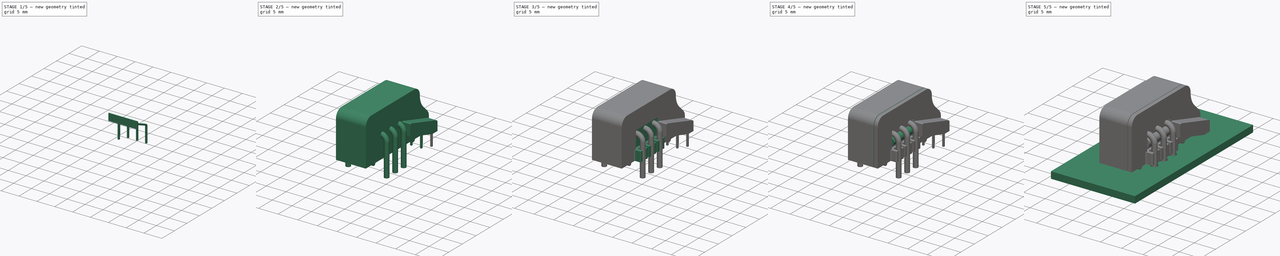
[diagram: build sequence overview — one tinted view per stage of 5, left to right]
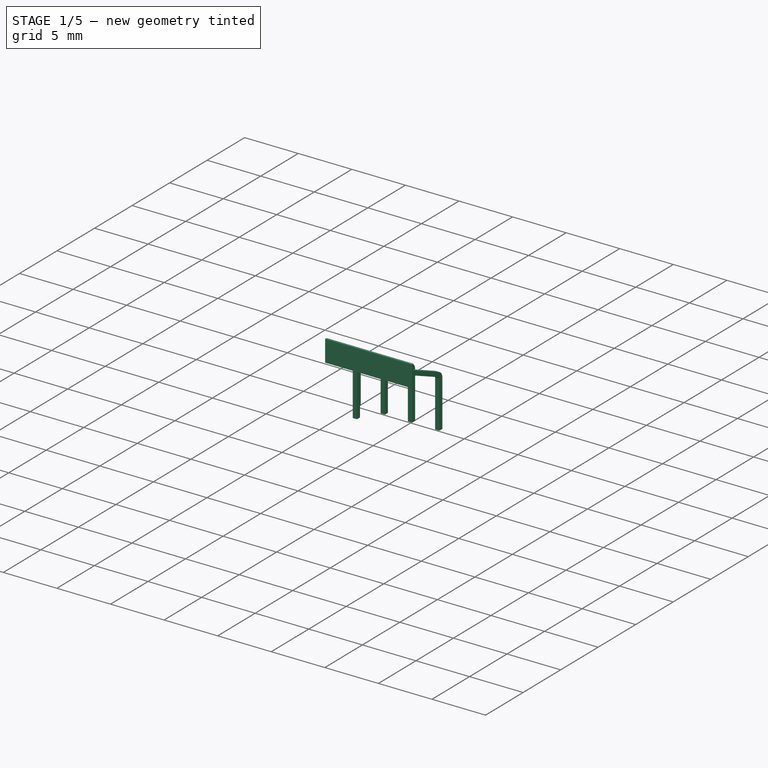
[diagram: stage 1 of 5 — iso view after this stage's code; geometry added in this stage tinted green]
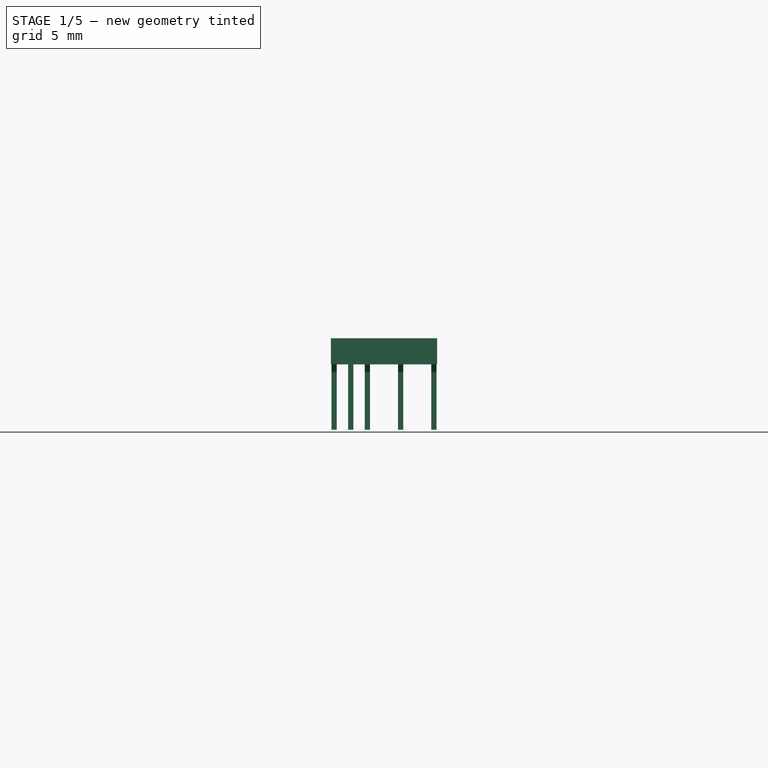
[diagram: stage 1 of 5 — front view after this stage's code; geometry added in this stage tinted green]
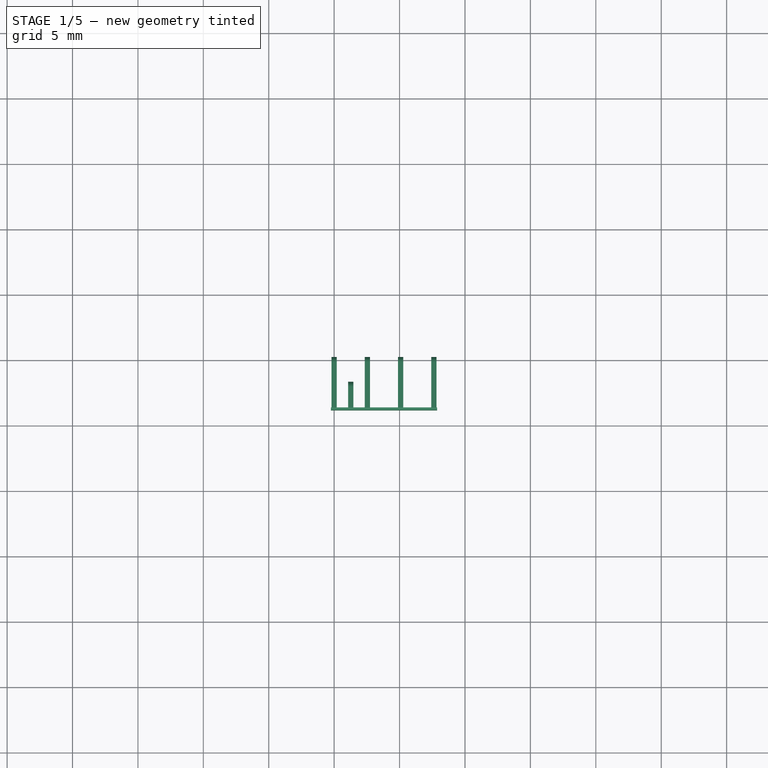
[diagram: stage 1 of 5 — top view after this stage's code; geometry added in this stage tinted green]
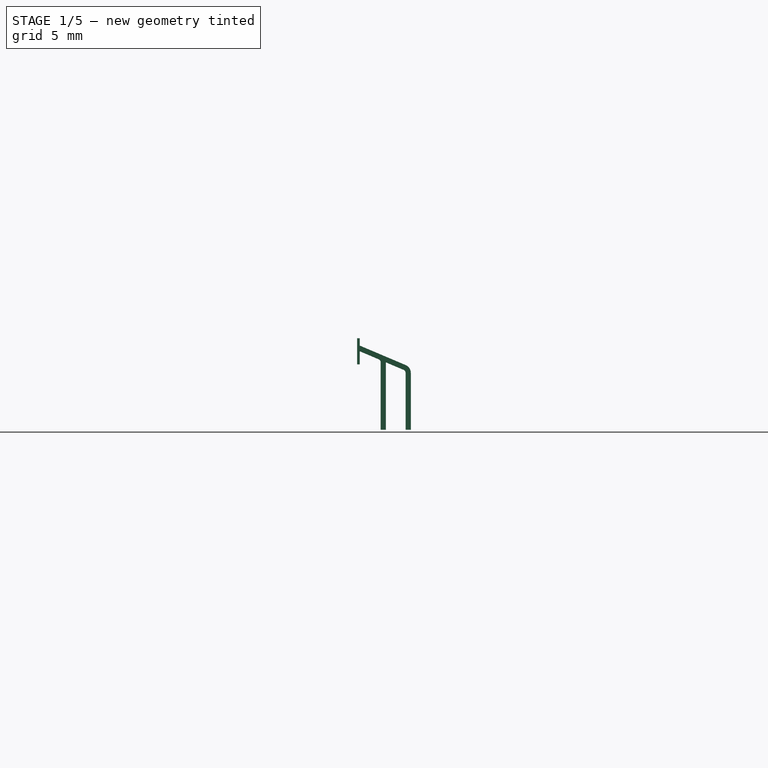
[diagram: stage 1 of 5 — right view after this stage's code; geometry added in this stage tinted green]
FCSTD DOCUMENT  (FreeCAD 0.17R10432 (Git))
Label: LEM_HO-NP
License: All rights reserved
LicenseURL: http://en.wikipedia.org/wiki/All_rights_reserved
objects: Sketcher::SketchObject×12, PartDesign::Plane×8, PartDesign::Pad×7, Part::FeaturePython×6, PartDesign::Mirrored×3, PartDesign::Pocket×3, PartDesign::Body×3, PartDesign::LinearPattern×2, App::DocumentObjectGroup×1, Part::Sweep×1, App::Part×1, Part::MultiFuse×1
note: 56 computed .brp shape members not serialized (recipe doc carries the construction recipe); baked Part::Feature solids carry a one-line shape summary decoded from their .brp

FEATURE [PartDesign::Plane] DatumPlane006  label="X_mid002"
  MapMode = 5
  Placement = pos=(3.81,0,0) rot=(0.57735,0.57735,0.57735;2.0944rad)
  Support = -> [YZ_Plane003]
  superPlacement = pos=(0,0,3.81) rot=(0,0,1;0rad)
  expr: superPlacement.Base.z = 3 * 1.27
FEATURE [Sketcher::SketchObject] Sketch009
  MapMode = 5
  Placement = pos=(3.81,0,0) rot=(0.57735,0.57735,0.57735;2.0944rad)
  Support = -> [DatumPlane006]
  sketch-geometry (4):
    g0: LineSegment StartX=-3.9 StartY=3.5 StartZ=0 EndX=-3.7 EndY=3.5 EndZ=0
    g1: LineSegment StartX=-3.7 StartY=3.5 StartZ=0 EndX=-3.7 EndY=1.5 EndZ=0
    g2: LineSegment StartX=-3.7 StartY=1.5 StartZ=0 EndX=-3.9 EndY=1.5 EndZ=0
    g3: LineSegment StartX=-3.9 StartY=1.5 StartZ=0 EndX=-3.9 EndY=3.5 EndZ=0
  constraints (12):
    c: Coincident(g0,g1)
    c: Coincident(g1,g2)
    c: Coincident(g2,g3)
    c: Coincident(g3,g0)
    c: Horizontal(g0)
    c: Horizontal(g2)
    c: Vertical(g1)
    c: Vertical(g3)
    c: DistanceX(g1,g-1) = 3.7
    c: DistanceX(g0,g0) = 0.2
    c: DistanceY(g1,g1) = 2
    c: DistanceY(g-1,g1) = 1.5
FEATURE [PartDesign::Pad] Pad004  label="PinBackplate"
  Length = 8.12
  Length2 = 100
  Midplane = true
  Placement = pos=(3.81,0,0) rot=(0.57735,0.57735,0.57735;2.0944rad)
  Profile = -> Sketch009
  Type = 0
  expr: Length = 6 * 1.27 + 2 * 0.25
FEATURE [Sketcher::SketchObject] Sketch010
  ExternalGeometry = -> [Pad004]
  MapMode = 5
  Placement = pos=(0,0,0) rot=(0.57735,0.57735,0.57735;2.0944rad)
  Support = -> [YZ_Plane003]
  sketch-geometry (8):
    g0: LineSegment StartX=-0.2 StartY=-3.5 StartZ=0 EndX=-0.2 EndY=0.85 EndZ=0
    g1: LineSegment StartX=-0.352383 StartY=1.08015 StartZ=0 EndX=-3.7 EndY=2.5 EndZ=0
    g2: LineSegment StartX=-3.7 StartY=2.5 StartZ=0 EndX=-3.7 EndY=2.93449 EndZ=0
    g3: LineSegment StartX=-3.7 StartY=2.93449 StartZ=0 EndX=-0.196196 EndY=1.4484 EndZ=0
    g4: LineSegment StartX=0.2 StartY=0.85 StartZ=0 EndX=0.2 EndY=-3.5 EndZ=0
    g5: LineSegment StartX=0.2 StartY=-3.5 StartZ=0 EndX=-0.2 EndY=-3.5 EndZ=0
    g6: ArcOfCircle CenterX=-0.45 CenterY=0.85 CenterZ=0 NormalX=0 NormalY=0 NormalZ=1 Radius=0.25 StartAngle=0 EndAngle=1.16966
    g7: ArcOfCircle CenterX=-0.45 CenterY=0.85 CenterZ=0 NormalX=0 NormalY=0 NormalZ=1 Radius=0.65 StartAngle=0 EndAngle=1.16966
  constraints (21):
    c: Vertical(g0)
    c: Coincident(g1,g2)
    c: Vertical(g2)
    c: Coincident(g2,g3)
    c: Vertical(g4)
    c: Coincident(g4,g5)
    c: Coincident(g5,g0)
    c: Horizontal(g5)
    c: Tangent(g1,g6) = -1.5708
    c: Tangent(g0,g6) = -1.5708
    c: Tangent(g3,g7) = 1.5708
    c: Tangent(g4,g7) = 1.5708
    c: Coincident(g7,g6)
    c: Parallel(g1,g3)
    c: Radius(g6) = 0.25
    c: DistanceX(g5,g5) = 0.4
    c: Symmetric(g0,g4,g-2)
    c: DistanceY(g4,g-1) = 3.5
    c: DistanceY(g0,g6) = 4.35
    c: DistanceY(g-1,g1) = 2.5
    c: PointOnObject(g1,g-3)
FEATURE [PartDesign::Pad] Pad005  label="SignalPin1"
  BaseFeature = -> Pad004
  Length = 0.4
  Length2 = 100
  Midplane = true
  Placement = pos=(3.81,0,0) rot=(0.57735,0.57735,0.57735;2.0944rad)
  Profile = -> Sketch010
  Type = 0
FEATURE [PartDesign::LinearPattern] LinearPattern  label="OddSignalPins"
  BaseFeature = -> Pad005
  Direction = -> X_Axis003
  Length = 7.62
  Occurrences = 4
  Originals = -> [Pad005]
  Placement = pos=(3.81,0,0) rot=(0.57735,0.57735,0.57735;2.0944rad)
  expr: Length = 6 * 1.27
FEATURE [PartDesign::Plane] DatumPlane007  label="Pin2_x"
  MapMode = 5
  Placement = pos=(1.27,0,0) rot=(0.57735,0.57735,0.57735;2.0944rad)
  Support = -> [YZ_Plane003]
  superPlacement = pos=(0,0,1.27) rot=(0,0,1;0rad)
FEATURE [Sketcher::SketchObject] Sketch011
  ExternalGeometry = -> [LinearPattern]
  MapMode = 5
  Placement = pos=(1.27,0,0) rot=(0.57735,0.57735,0.57735;2.0944rad)
  Support = -> [DatumPlane007]
  sketch-geometry (9):
    g0: LineSegment StartX=-3.7 StartY=2.93449 StartZ=0 EndX=-3.7 EndY=2.5 EndZ=0
    g1: LineSegment StartX=-3.7 StartY=2.5 StartZ=0 EndX=-2.25738 EndY=1.88813 EndZ=0
    g2: LineSegment StartX=-2.105 StartY=1.65798 StartZ=0 EndX=-2.105 EndY=-3.5 EndZ=0
    g3: LineSegment StartX=-2.105 StartY=-3.5 StartZ=0 EndX=-1.705 EndY=-3.5 EndZ=0
    g4: LineSegment StartX=-1.705 StartY=-3.5 StartZ=0 EndX=-1.705 EndY=1.65798 EndZ=0
    g5: LineSegment StartX=-2.1012 StartY=2.25638 StartZ=0 EndX=-3.7 EndY=2.93449 EndZ=0
    g6: ArcOfCircle CenterX=-2.355 CenterY=1.65798 CenterZ=0 NormalX=0 NormalY=0 NormalZ=1 Radius=0.65 StartAngle=0 EndAngle=1.16966
    g7: ArcOfCircle CenterX=-2.355 CenterY=1.65798 CenterZ=0 NormalX=0 NormalY=0 NormalZ=1 Radius=0.25 StartAngle=0 EndAngle=1.16966
    g8: LineSegment [constr] StartX=-1.905 StartY=-3.5 StartZ=0 EndX=-1.905 EndY=0 EndZ=0
  constraints (24):
    c: Vertical(g0)
    c: Coincident(g0,g1)
    c: Vertical(g2)
    c: Coincident(g2,g3)
    c: Coincident(g3,g4)
    c: Vertical(g4)
    c: Coincident(g5,g0)
    c: Tangent(g5,g6) = -1.5708
    c: Tangent(g4,g6) = -1.5708
    c: Tangent(g1,g7) = 1.5708
    c: Tangent(g2,g7) = 1.5708
    c: Coincident(g6,g7)
    c: Parallel(g5,g1)
    c: Radius(g7) = 0.25
    c: Horizontal(g3)
    c: DistanceX(g3,g3) = 0.4
    c: PointOnObject(g8,g-1)
    c: Vertical(g8)
    c: Symmetric(g2,g3,g8)
    c: DistanceX(g8,g-1) = 1.905
    c: Coincident(g0,g-4)
    c: PointOnObject(g1,g-4)
    c: PointOnObject(g8,g3)
    c: DistanceY(g3,g-1) = 3.5
FEATURE [PartDesign::Pad] Pad006  label="SignalPin2"
  BaseFeature = -> LinearPattern
  Length = 0.4
  Length2 = 100
  Midplane = true
  Placement = pos=(3.81,0,0) rot=(0.57735,0.57735,0.57735;2.0944rad)
  Profile = -> Sketch011
  Type = 0
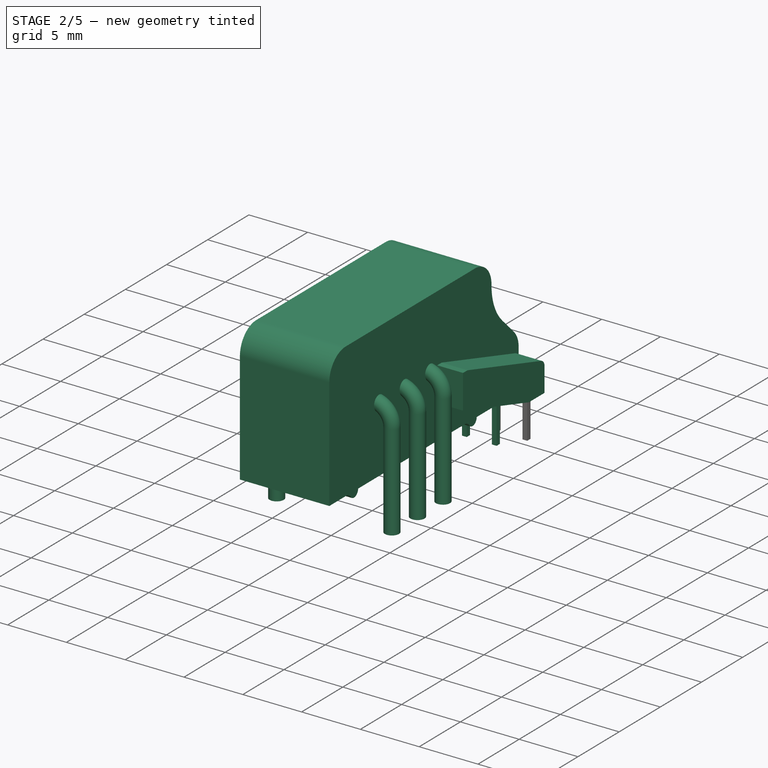
[diagram: stage 2 of 5 — iso view after this stage's code; geometry added in this stage tinted green]
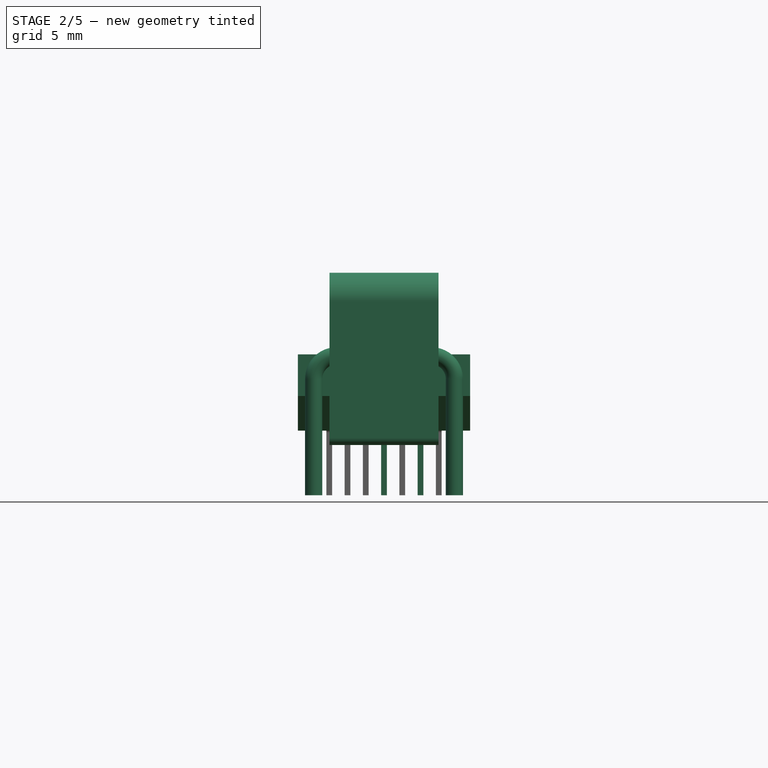
[diagram: stage 2 of 5 — front view after this stage's code; geometry added in this stage tinted green]
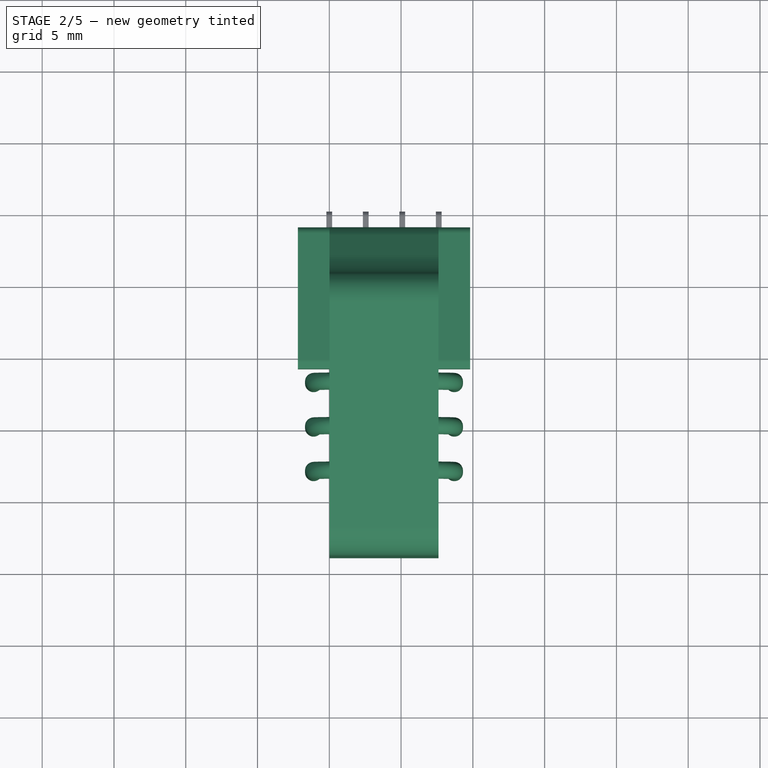
[diagram: stage 2 of 5 — top view after this stage's code; geometry added in this stage tinted green]
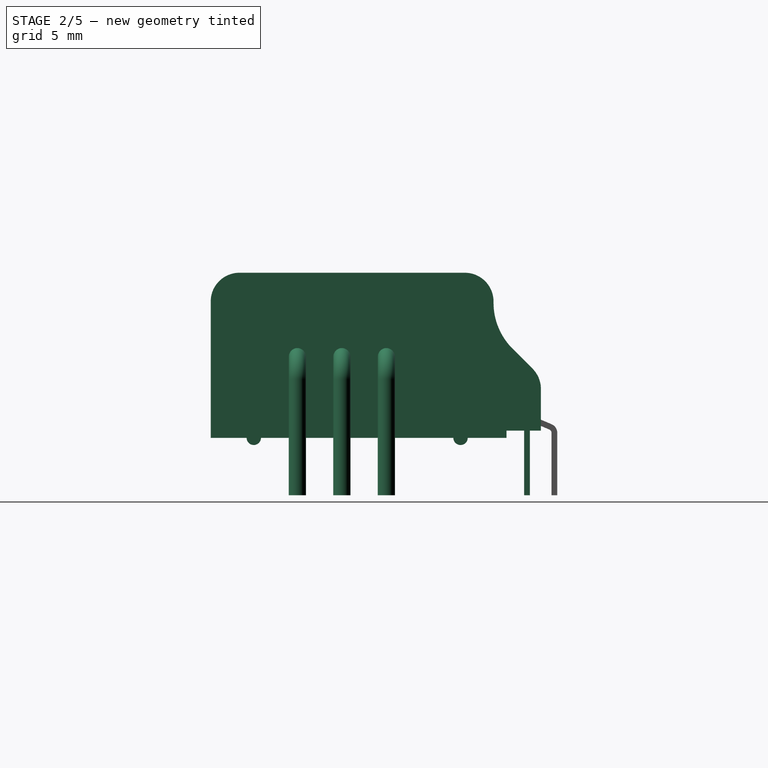
[diagram: stage 2 of 5 — right view after this stage's code; geometry added in this stage tinted green]
FEATURE [App::DocumentObjectGroup] LEM_HO_NP_fp
  Group = -> [Filk_lines,TopPads,BotPads,THPs,newPCB]
FEATURE [PartDesign::Plane] DatumPlane  label="X_mid"
  MapMode = 5
  Placement = pos=(3.81,0,0) rot=(0.57735,-0.57735,-0.57735;2.0944rad)
  Support = -> [YZ_Plane001]
  superPlacement = pos=(0,0,-3.81) rot=(0,0,1;0rad)
  expr: superPlacement.Base.z = -3 * 1.27
FEATURE [Sketcher::SketchObject] Sketch  label="MainBodyOutline"
  MapMode = 5
  Placement = pos=(3.81,0,0) rot=(0.57735,-0.57735,-0.57735;2.0944rad)
  Support = -> [DatumPlane]
  sketch-geometry (22):
    g0: LineSegment [constr] StartX=0.94 StartY=0 StartZ=0 EndX=23.94 EndY=0 EndZ=0
    g1: LineSegment [constr] StartX=23.94 StartY=0 StartZ=0 EndX=23.94 EndY=12 EndZ=0
    g2: LineSegment [constr] StartX=23.94 StartY=12 StartZ=0 EndX=0.94 EndY=12 EndZ=0
    g3: LineSegment [constr] StartX=0.94 StartY=12 StartZ=0 EndX=0.94 EndY=0 EndZ=0
    g4: LineSegment [constr] StartX=0.94 StartY=0.5 StartZ=0 EndX=23.94 EndY=0.5 EndZ=0
    g5: ArcOfCircle CenterX=6.54 CenterY=0.5 CenterZ=0 NormalX=0 NormalY=0 NormalZ=1 Radius=0.5 StartAngle=3.14159 EndAngle=6.28319
    g6: ArcOfCircle CenterX=20.94 CenterY=0.5 CenterZ=0 NormalX=0 NormalY=0 NormalZ=1 Radius=0.5 StartAngle=3.14159 EndAngle=6.28319
    g7: ArcOfCircle CenterX=21.94 CenterY=10 CenterZ=0 NormalX=0 NormalY=0 NormalZ=1 Radius=2 StartAngle=0 EndAngle=1.5708
    g8: ArcOfCircle CenterX=6.24 CenterY=10 CenterZ=0 NormalX=0 NormalY=0 NormalZ=1 Radius=2 StartAngle=1.5708 EndAngle=3.14159
    g9: ArcOfCircle CenterX=-0.259999 CenterY=9.9 CenterZ=0 NormalX=0 NormalY=0 NormalZ=1 Radius=4.5 StartAngle=5.49779 EndAngle=6.28319
    g10: ArcOfCircle CenterX=2.94 CenterY=3.90761 CenterZ=0 NormalX=0 NormalY=0 NormalZ=1 Radius=2 StartAngle=2.35619 EndAngle=3.14159
    g11: LineSegment StartX=23.94 StartY=10 StartZ=0 EndX=23.94 EndY=0.5 EndZ=0
    g12: LineSegment StartX=23.94 StartY=0.5 StartZ=0 EndX=21.44 EndY=0.5 EndZ=0
    g13: LineSegment StartX=21.94 StartY=12 StartZ=0 EndX=6.24 EndY=12 EndZ=0
    g14: LineSegment StartX=4.24 StartY=10 StartZ=0 EndX=4.24 EndY=9.9 EndZ=0
    g15: LineSegment StartX=2.92198 StartY=6.71802 StartZ=0 EndX=1.52579 EndY=5.32182 EndZ=0
    g16: LineSegment [constr] StartX=2.92198 StartY=6.71802 StartZ=0 EndX=23.94 EndY=6.71802 EndZ=0
    g17: LineSegment StartX=0.94 StartY=3.90761 StartZ=0 EndX=0.94 EndY=1 EndZ=0
    g18: LineSegment StartX=0.94 StartY=1 StartZ=0 EndX=3.34 EndY=1 EndZ=0
    g19: LineSegment StartX=3.34 StartY=1 StartZ=0 EndX=3.34 EndY=0.5 EndZ=0
    g20: LineSegment StartX=3.34 StartY=0.5 StartZ=0 EndX=6.04 EndY=0.5 EndZ=0
    g21: LineSegment StartX=20.44 StartY=0.5 StartZ=0 EndX=7.04 EndY=0.5 EndZ=0
  constraints (70):
    c: Coincident(g0,g1)
    c: Coincident(g1,g2)
    c: Coincident(g2,g3)
    c: Coincident(g3,g0)
    c: Horizontal(g0)
    c: Horizontal(g2)
    c: Vertical(g1)
    c: Vertical(g3)
    c: PointOnObject(g0,g-1)
    c: DistanceX(g2,g2) = 23
    c: DistanceX(g-1,g1) = 23.94
    c: DistanceY(g1,g1) = 12
    c: PointOnObject(g4,g3)
    c: PointOnObject(g4,g1)
    c: Horizontal(g4)
    c: DistanceY(g0,g4) = 0.5
    c: PointOnObject(g5,g4)
    c: PointOnObject(g5,g4)
    c: PointOnObject(g5,g4)
    c: PointOnObject(g6,g4)
    c: PointOnObject(g6,g4)
    c: PointOnObject(g6,g4)
    c: Radius(g6) = 0.5
    c: Equal(g6,g5)
    c: DistanceX(g5,g6) = 14.4
    c: DistanceX(g6,g0) = 3
    c: Radius(g8) = 2
    c: Radius(g9) = 4.5
    c: Radius(g10) = 2
    c: Radius(g7) = 2
    c: Tangent(g7,g11) = 1.5708
    c: Coincident(g11,g12)
    c: Coincident(g12,g6)
    c: Coincident(g11,g4)
    c: Vertical(g11)
    c: Coincident(g13,g8)
    c: Tangent(g13,g8)
    c: Tangent(g13,g7)
    c: Horizontal(g13)
    c: PointOnObject(g7,g2)
    c: Vertical(g14)
    c: Coincident(g14,g8)
    c: Coincident(g14,g9)
    c: Tangent(g9,g14)
    c: Tangent(g14,g8)
    c: DistanceY(g14,g14) = 0.1
    c: Coincident(g7,g13)
    c: Coincident(g15,g9)
    c: Coincident(g15,g10)
    c: Tangent(g15,g9)
    c: Tangent(g15,g10)
    c: Coincident(g16,g9)
    c: PointOnObject(g16,g1)
    c: Horizontal(g16)
    c: Angle(g15,g16) = 2.35619
    c: DistanceX(g8,g7) = 15.7
    c: Tangent(g10,g17) = -1.5708
    c: Coincident(g17,g18)
    c: Horizontal(g18)
    c: Coincident(g18,g19)
    c: PointOnObject(g19,g4)
    c: Coincident(g19,g20)
    c: Coincident(g20,g5)
    c: Vertical(g17)
    c: PointOnObject(g17,g3)
    c: Vertical(g19)
    c: DistanceX(g18,g18) = 2.4
    c: DistanceY(g19,g19) = 0.5
    c: Coincident(g21,g6)
    c: Coincident(g21,g5)
FEATURE [PartDesign::Pad] Pad
  Length = 7.6
  Length2 = 100
  Midplane = true
  Placement = pos=(3.81,0,0) rot=(0.57735,-0.57735,-0.57735;2.0944rad)
  Profile = -> Sketch
  Reversed = true
  Type = 0
FEATURE [PartDesign::Plane] DatumPlane001  label="X_min"
  MapMode = 5
  Placement = pos=(-2.19,0,0) rot=(0.57735,-0.57735,-0.57735;2.0944rad)
  Support = -> [DatumPlane]
  superPlacement = pos=(0,0,6) rot=(0,0,1;0rad)
FEATURE [Sketcher::SketchObject] Sketch001
  ExternalGeometry = -> [Pad]
  MapMode = 5
  Placement = pos=(3.81,0,0) rot=(0.57735,-0.57735,-0.57735;2.0944rad)
  Support = -> [DatumPlane]
  sketch-geometry (8):
    g0: LineSegment StartX=0.94 StartY=1 StartZ=0 EndX=2.84 EndY=1 EndZ=0
    g1: LineSegment StartX=2.84 StartY=1 StartZ=0 EndX=10.84 EndY=3.41 EndZ=0
    g2: LineSegment StartX=10.84 StartY=3.41 StartZ=0 EndX=10.84 EndY=6.31 EndZ=0
    g3: LineSegment StartX=10.84 StartY=6.31 StartZ=0 EndX=10.3848 EndY=6.31 EndZ=0
    g4: LineSegment StartX=10.2117 StartY=6.2845 StartZ=0 EndX=1.36693 EndY=3.62 EndZ=0
    g5: LineSegment StartX=0.94 StartY=3.0455 StartZ=0 EndX=0.94 EndY=1 EndZ=0
    g6: ArcOfCircle CenterX=1.54 CenterY=3.0455 CenterZ=0 NormalX=0 NormalY=0 NormalZ=1 Radius=0.6 StartAngle=1.8634 EndAngle=3.14159
    g7: ArcOfCircle CenterX=10.3848 CenterY=5.71 CenterZ=0 NormalX=0 NormalY=0 NormalZ=1 Radius=0.6 StartAngle=1.5708 EndAngle=1.8634
  constraints (21):
    c: Coincident(g-3,g0)
    c: Horizontal(g0)
    c: Coincident(g0,g1)
    c: Coincident(g1,g2)
    c: Vertical(g2)
    c: Coincident(g2,g3)
    c: Horizontal(g3)
    c: Coincident(g5,g0)
    c: Tangent(g4,g6) = -1.5708
    c: Tangent(g5,g6) = -1.5708
    c: Tangent(g4,g7) = -1.5708
    c: Tangent(g3,g7) = -1.5708
    c: Radius(g6) = 0.6
    c: Equal(g6,g7)
    c: PointOnObject(g5,g-3)
    c: DistanceY(g0,g4) = 2.62
    c: Parallel(g4,g1)
    c: DistanceY(g-1,g1) = 3.41
    c: DistanceY(g2,g2) = 2.9
    c: DistanceX(g0,g0) = 1.9
    c: DistanceX(g-3,g2) = 9.9
FEATURE [PartDesign::Pad] Pad001
  BaseFeature = -> Pad
  Length = 12
  Length2 = 100
  Midplane = true
  Placement = pos=(3.81,0,0) rot=(0.57735,-0.57735,-0.57735;2.0944rad)
  Profile = -> Sketch001
  Type = 0
FEATURE [PartDesign::Body] Body  label="MainBody"
  Group = -> [DatumPlane,Sketch,Pad,DatumPlane001,Sketch001,Pad001,Sketch002,Pad002,Mirrored,Sketch003,Pocket,Mirrored001,Sketch004,Pad003,Mirrored002,DatumPlane002,Sketch005,Pocket001,Sketch006,Pocket002]
  Origin = -> BodyOrigin
  Tip = -> Pocket002
FEATURE [PartDesign::Plane] DatumPlane003  label="X_mid001"
  MapMode = 5
  Placement = pos=(3.81,0,0) rot=(0.57735,0.57735,0.57735;2.0944rad)
  Support = -> [YZ_Plane002]
  superPlacement = pos=(0,0,3.81) rot=(0,0,1;0rad)
FEATURE [PartDesign::Plane] DatumPlane004  label="Y_pin_8"
  MapMode = 5
  Placement = pos=(0,-11.705,0) rot=(1,0,0;1.5708rad)
  Support = -> [XZ_Plane002]
  superPlacement = pos=(0,0,11.705) rot=(0,0,1;0rad)
  expr: superPlacement.Base.z = 9.8000000000000007 + 1.905
FEATURE [Sketcher::SketchObject] Sketch007
  MapMode = 5
  Placement = pos=(0,-11.705,0) rot=(1,0,0;1.5708rad)
  Support = -> [DatumPlane004]
  expr: Constraints[16] = 1 + 0.59999999999999998
  expr: Constraints[4] = 3 * 1.27
  sketch-geometry (7):
    g0: LineSegment [constr] StartX=-1.09 StartY=-3.5 StartZ=0 EndX=8.71 EndY=-3.5 EndZ=0
    g1: LineSegment [constr] StartX=3.81 StartY=-3.5 StartZ=0 EndX=3.81 EndY=6.21 EndZ=0
    g2: LineSegment StartX=-1.09 StartY=-3.5 StartZ=0 EndX=-1.09 EndY=4.61 EndZ=0
    g3: LineSegment StartX=0.51 StartY=6.21 StartZ=0 EndX=7.11 EndY=6.21 EndZ=0
    g4: LineSegment StartX=8.71 StartY=4.61 StartZ=0 EndX=8.71 EndY=-3.5 EndZ=0
    g5: ArcOfCircle CenterX=0.51 CenterY=4.61 CenterZ=0 NormalX=0 NormalY=0 NormalZ=1 Radius=1.6 StartAngle=1.5708 EndAngle=3.14159
    g6: ArcOfCircle CenterX=7.11 CenterY=4.61 CenterZ=0 NormalX=0 NormalY=0 NormalZ=1 Radius=1.6 StartAngle=0 EndAngle=1.5708
  constraints (20):
    c: Horizontal(g0)
    c: DistanceX(g0,g0) = 9.8
    c: Vertical(g1)
    c: Symmetric(g0,g0,g1)
    c: DistanceX(g-1,g1) = 3.81
    c: DistanceY(g0,g-1) = 3.5
    c: Coincident(g0,g2)
    c: Vertical(g2)
    c: Horizontal(g3)
    c: Vertical(g4)
    c: Coincident(g4,g0)
    c: Tangent(g3,g5) = 1.5708
    c: Tangent(g2,g5) = 1.5708
    c: Tangent(g3,g6) = 1.5708
    c: Tangent(g4,g6) = 1.5708
    c: DistanceY(g-1,g5) = 4.61
    c: Radius(g5) = 1.6
    c: Equal(g6,g5)
    c: PointOnObject(g1,g3)
    c: PointOnObject(g1,g0)
FEATURE [PartDesign::Plane] DatumPlane005  label="Pins_Bottom"
  MapMode = 5
  Placement = pos=(0,0,-3.5) rot=(0,0,1;0rad)
  Support = -> [XY_Plane002]
  superPlacement = pos=(0,0,-3.5) rot=(0,0,1;0rad)
  expr: superPlacement.Base.z = -3.5
FEATURE [Sketcher::SketchObject] Sketch008
  MapMode = 5
  Placement = pos=(0,0,-3.5) rot=(0,0,1;0rad)
  Support = -> [DatumPlane005]
  expr: Constraints[9] = 3 * 1.27
  expr: Constraints[4] = 1.2 / 2
  expr: Constraints[0] = 9.8000000000000007 + 1.905
  sketch-geometry (3):
    g0: Circle CenterX=-1.09 CenterY=-11.705 CenterZ=0 NormalX=0 NormalY=0 NormalZ=1 Radius=0.6
    g1: LineSegment [constr] StartX=-1.09 StartY=-11.705 StartZ=0 EndX=8.71 EndY=-11.705 EndZ=0
    g2: LineSegment [constr] StartX=3.81 StartY=0 StartZ=0 EndX=3.81 EndY=-11.705 EndZ=0
  constraints (10):
    c: DistanceY(g0,g-1) = 11.705
    c: Coincident(g1,g0)
    c: Horizontal(g1)
    c: DistanceX(g1,g1) = 9.8
    c: Radius(g0) = 0.6
    c: Vertical(g2)
    c: PointOnObject(g2,g-1)
    c: PointOnObject(g2,g1)
    c: Symmetric(g1,g0,g2)
    c: DistanceX(g-1,g2) = 3.81
FEATURE [PartDesign::Body] Body001  label="PowerPins"
  Group = -> [DatumPlane003,DatumPlane004,Sketch007,DatumPlane005,Sketch008]
  Origin = -> Body001Origin
FEATURE [Part::Sweep] Sweep
  Frenet = false
  Sections = -> [Sketch008]
  Solid = true
  Spine = -> Sketch007 [Edge1,Edge2,Edge3,Edge4,Edge5]
  Transition = 1
FEATURE [Part::FeaturePython] Array  label="array_PowerPins"  # Draft array (typed FeaturePython)
  Angle = 360
  ArrayType = 0
  Axis = (0,0,1)
  Base = -> Sweep
  Center = (0,0,0)
  Fuse = false
  IntervalAxis = (0,0,0)
  IntervalX = (1,0,0)
  IntervalY = (0,-3.1,0)
  IntervalZ = (0,0,0)
  NumberPolar = 1
  NumberX = 1
  NumberY = 3
  NumberZ = 1
FEATURE [PartDesign::LinearPattern] LinearPattern001  label="EvenSignalPins"
  BaseFeature = -> Pad006
  Direction = -> X_Axis003
  Length = 5.08
  Occurrences = 3
  Originals = -> [Pad006]
  Placement = pos=(3.81,0,0) rot=(0.57735,0.57735,0.57735;2.0944rad)
  expr: Length = 4 * 1.27
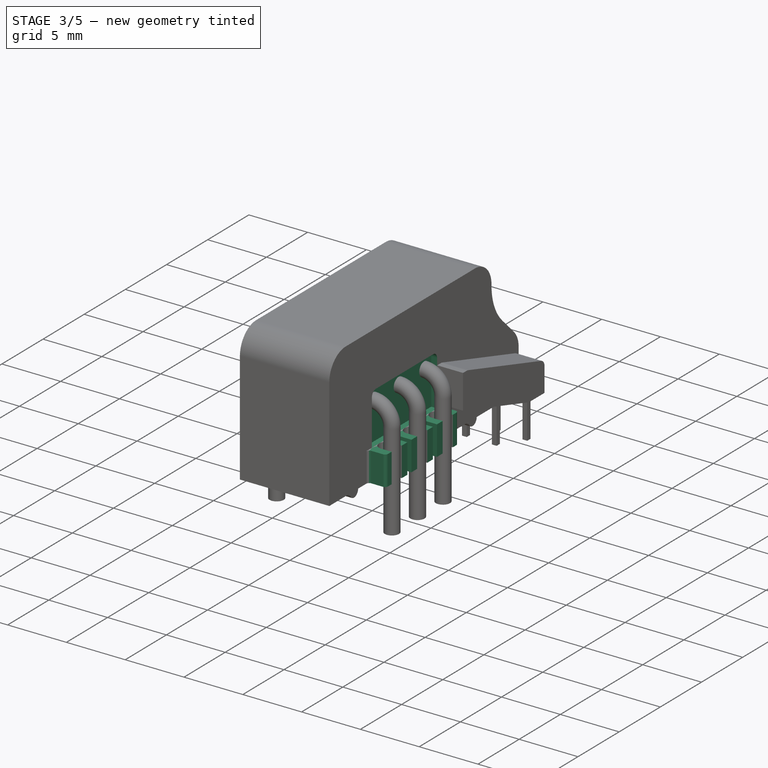
[diagram: stage 3 of 5 — iso view after this stage's code; geometry added in this stage tinted green]
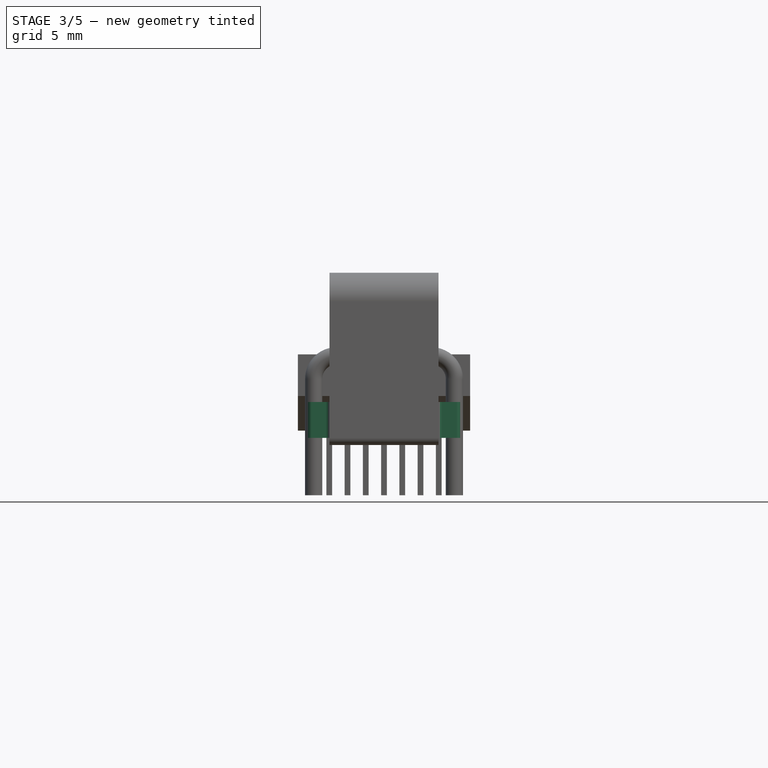
[diagram: stage 3 of 5 — front view after this stage's code; geometry added in this stage tinted green]
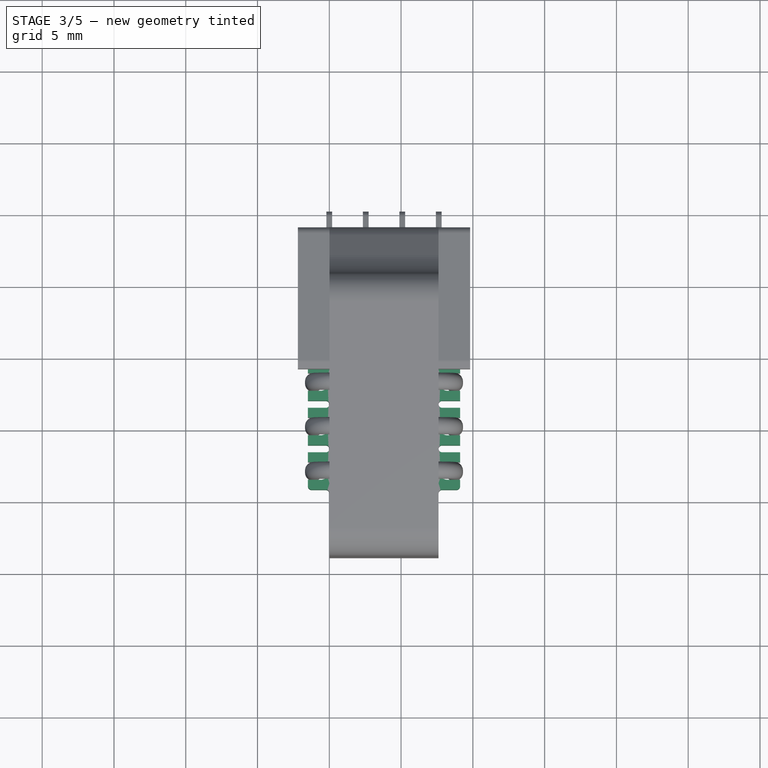
[diagram: stage 3 of 5 — top view after this stage's code; geometry added in this stage tinted green]
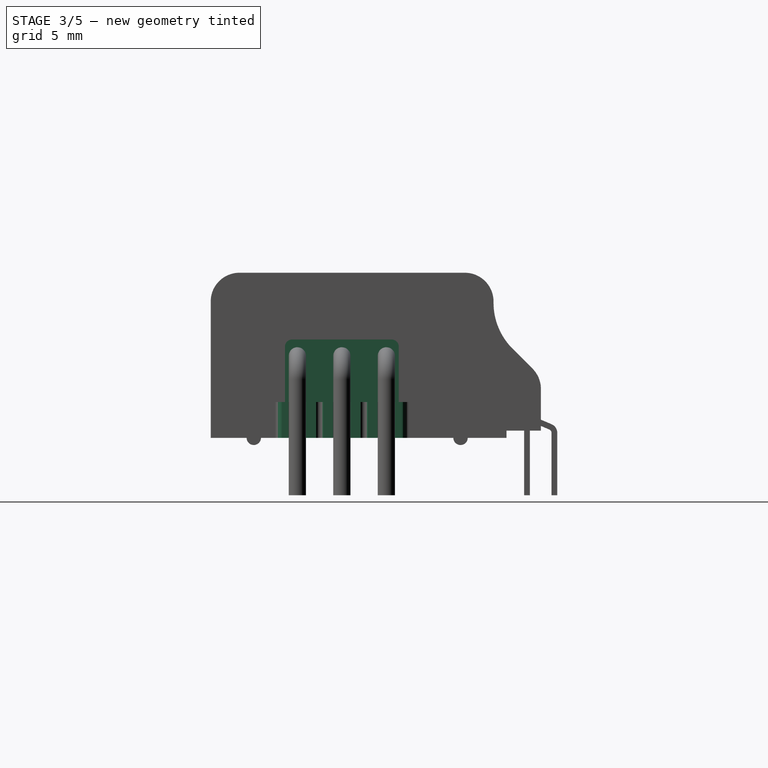
[diagram: stage 3 of 5 — right view after this stage's code; geometry added in this stage tinted green]
FEATURE [Sketcher::SketchObject] Sketch002
  ExternalGeometry = -> [Pad001]
  MapMode = 5
  Placement = pos=(3.81,0,0.5) rot=(0.707107,-0.707107,0;3.14159rad)
  Support = -> [Pad001]
  expr: Constraints[5] = 9.8000000000000007 + 1.905
  sketch-geometry (46):
    g0: LineSegment [constr] StartX=11.705 StartY=4.415 StartZ=0 EndX=14.805 EndY=4.415 EndZ=0
    g1: LineSegment [constr] StartX=14.805 StartY=4.415 StartZ=0 EndX=17.905 EndY=4.415 EndZ=0
    g2: LineSegment [constr] StartX=0 StartY=5.3 StartZ=0 EndX=23.94 EndY=5.3 EndZ=0
    g3: LineSegment [constr] StartX=23.94 StartY=5.3 StartZ=0 EndX=23.94 EndY=-5.3 EndZ=0
    g4: LineSegment [constr] StartX=23.94 StartY=-5.3 StartZ=0 EndX=0 EndY=-5.3 EndZ=0
    g5: LineSegment [constr] StartX=0 StartY=-5.3 StartZ=0 EndX=0 EndY=5.3 EndZ=0
    g6: ArcOfCircle CenterX=11.705 CenterY=4.415 CenterZ=0 NormalX=0 NormalY=0 NormalZ=1 Radius=0.615 StartAngle=3.14159 EndAngle=6.28319
    g7: LineSegment StartX=11.09 StartY=5.3 StartZ=0 EndX=11.09 EndY=4.415 EndZ=0
    g8: LineSegment StartX=12.32 StartY=5.3 StartZ=0 EndX=12.32 EndY=4.415 EndZ=0
    g9: ArcOfCircle CenterX=14.805 CenterY=4.415 CenterZ=0 NormalX=0 NormalY=0 NormalZ=1 Radius=0.615 StartAngle=3.14159 EndAngle=6.28319
    g10: LineSegment StartX=14.19 StartY=5.3 StartZ=0 EndX=14.19 EndY=4.415 EndZ=0
    g11: LineSegment StartX=15.42 StartY=5.3 StartZ=0 EndX=15.42 EndY=4.415 EndZ=0
    g12: ArcOfCircle CenterX=17.905 CenterY=4.415 CenterZ=0 NormalX=0 NormalY=0 NormalZ=1 Radius=0.615 StartAngle=3.14159 EndAngle=6.28319
    g13: LineSegment StartX=17.29 StartY=5.3 StartZ=0 EndX=17.29 EndY=4.415 EndZ=0
    g14: LineSegment StartX=18.52 StartY=5.3 StartZ=0 EndX=18.52 EndY=4.415 EndZ=0
    g15: ArcOfCircle CenterX=13.255 CenterY=4.05 CenterZ=0 NormalX=0 NormalY=0 NormalZ=1 Radius=0.25 StartAngle=3.14159 EndAngle=6.28319
    g16: LineSegment StartX=13.005 StartY=5.3 StartZ=0 EndX=13.005 EndY=4.05 EndZ=0
    g17: LineSegment StartX=13.505 StartY=5.3 StartZ=0 EndX=13.505 EndY=4.05 EndZ=0
    g18: ArcOfCircle CenterX=16.355 CenterY=4.05 CenterZ=0 NormalX=0 NormalY=0 NormalZ=1 Radius=0.25 StartAngle=3.14159 EndAngle=6.28319
    g19: LineSegment StartX=16.105 StartY=5.3 StartZ=0 EndX=16.105 EndY=4.05 EndZ=0
    g20: LineSegment StartX=16.605 StartY=5.3 StartZ=0 EndX=16.605 EndY=4.05 EndZ=0
    g21: LineSegment [constr] StartX=11.705 StartY=4.415 StartZ=0 EndX=11.705 EndY=4.05 EndZ=0
    g22: LineSegment [constr] StartX=11.705 StartY=4.05 StartZ=0 EndX=13.255 EndY=4.05 EndZ=0
    g23: LineSegment [constr] StartX=13.255 StartY=4.05 StartZ=0 EndX=14.805 EndY=4.05 EndZ=0
    g24: LineSegment [constr] StartX=14.805 StartY=4.05 StartZ=0 EndX=16.355 EndY=4.05 EndZ=0
    g25: LineSegment [constr] StartX=16.355 StartY=4.05 StartZ=0 EndX=17.905 EndY=4.05 EndZ=0
    g26: LineSegment [constr] StartX=17.905 StartY=4.05 StartZ=0 EndX=17.905 EndY=4.415 EndZ=0
    g27: LineSegment StartX=12.32 StartY=5.3 StartZ=0 EndX=13.005 EndY=5.3 EndZ=0
    g28: LineSegment StartX=13.505 StartY=5.3 StartZ=0 EndX=14.19 EndY=5.3 EndZ=0
    g29: LineSegment StartX=15.42 StartY=5.3 StartZ=0 EndX=16.105 EndY=5.3 EndZ=0
    g30: LineSegment StartX=16.605 StartY=5.3 StartZ=0 EndX=17.29 EndY=5.3 EndZ=0
    g31: LineSegment StartX=11.09 StartY=5.3 StartZ=0 EndX=10.655 EndY=5.3 EndZ=0
    g32: LineSegment StartX=10.405 StartY=5.05 StartZ=0 EndX=10.405 EndY=4.05 EndZ=0
    g33: LineSegment StartX=10.155 StartY=3.8 StartZ=0 EndX=9.905 EndY=3.8 EndZ=0
    g34: LineSegment StartX=9.905 StartY=3.8 StartZ=0 EndX=9.905 EndY=3.55 EndZ=0
    g35: LineSegment StartX=9.905 StartY=3.55 StartZ=0 EndX=19.705 EndY=3.55 EndZ=0
    g36: LineSegment StartX=19.705 StartY=3.55 StartZ=0 EndX=19.705 EndY=3.8 EndZ=0
    g37: LineSegment StartX=19.705 StartY=3.8 StartZ=0 EndX=19.455 EndY=3.8 EndZ=0
    g38: LineSegment StartX=19.205 StartY=4.05 StartZ=0 EndX=19.205 EndY=5.05 EndZ=0
    g39: LineSegment StartX=18.955 StartY=5.3 StartZ=0 EndX=18.52 EndY=5.3 EndZ=0
    g40: ArcOfCircle CenterX=18.955 CenterY=5.05 CenterZ=0 NormalX=0 NormalY=0 NormalZ=1 Radius=0.25 StartAngle=0 EndAngle=1.5708
    g41: ArcOfCircle CenterX=19.455 CenterY=4.05 CenterZ=0 NormalX=0 NormalY=0 NormalZ=1 Radius=0.25 StartAngle=3.14159 EndAngle=4.71239
    g42: ArcOfCircle CenterX=10.155 CenterY=4.05 CenterZ=0 NormalX=0 NormalY=0 NormalZ=1 Radius=0.25 StartAngle=4.71239 EndAngle=6.28319
    g43: ArcOfCircle CenterX=10.655 CenterY=5.05 CenterZ=0 NormalX=0 NormalY=0 NormalZ=1 Radius=0.25 StartAngle=1.5708 EndAngle=3.14159
    g44: LineSegment [constr] StartX=10.405 StartY=5.05 StartZ=0 EndX=11.09 EndY=5.05 EndZ=0
    g45: LineSegment [constr] StartX=19.205 StartY=5.05 StartZ=0 EndX=18.52 EndY=5.05 EndZ=0
  constraints (124):
    c: Horizontal(g0)
    c: Coincident(g0,g1)
    c: Horizontal(g1)
    c: Equal(g0,g1)
    c: DistanceX(g0,g0) = 3.1
    c: DistanceX(g-1,g0) = 11.705
    c: Coincident(g2,g3)
    c: Coincident(g3,g4)
    c: Coincident(g4,g5)
    c: Coincident(g5,g2)
    c: Horizontal(g2)
    c: Horizontal(g4)
    c: Vertical(g3)
    c: Vertical(g5)
    c: Symmetric(g2,g3,g-1)
    c: DistanceY(g3,g3) = 10.6
    c: Tangent(g7,g6) = -1.5708
    c: Tangent(g8,g6) = 1.5708
    c: Vertical(g7)
    c: Coincident(g6,g0)
    c: Vertical(g8)
    c: Tangent(g10,g9) = -1.5708
    c: Tangent(g11,g9) = 1.5708
    c: Vertical(g10)
    c: Vertical(g11)
    c: Tangent(g13,g12) = -1.5708
    c: Tangent(g14,g12) = 1.5708
    c: Vertical(g13)
    c: Vertical(g14)
    c: Coincident(g9,g0)
    c: Coincident(g12,g1)
    c: Radius(g12) = 0.615
    c: Equal(g12,g9)
    c: Equal(g12,g6)
    c: DistanceY(g-3,g1) = 0.615
    c: Tangent(g16,g15) = -1.5708
    c: Tangent(g17,g15) = 1.5708
    c: Vertical(g16)
    c: Tangent(g19,g18) = -1.5708
    c: Tangent(g20,g18) = 1.5708
    c: Vertical(g19)
    c: Vertical(g17)
    c: Vertical(g20)
    c: Coincident(g0,g21)
    c: Vertical(g21)
    c: Coincident(g21,g22)
    c: Horizontal(g22)
    c: Coincident(g22,g23)
    c: Horizontal(g23)
    c: Coincident(g23,g24)
    c: Horizontal(g24)
    c: Coincident(g24,g25)
    c: Horizontal(g25)
    c: Coincident(g25,g26)
    c: Coincident(g26,g1)
    c: Vertical(g26)
    c: Equal(g25,g24)
    c: Equal(g24,g23)
    c: Equal(g23,g22)
    c: DistanceY(g-3,g25) = 0.25
    c: Coincident(g15,g22)
    c: Coincident(g18,g24)
    c: Radius(g18) = 0.25
    c: Equal(g18,g15)
    c: Coincident(g27,g8)
    c: Coincident(g27,g16)
    c: Coincident(g28,g17)
    c: Coincident(g29,g11)
    c: Coincident(g29,g19)
    c: Coincident(g30,g13)
    c: Coincident(g20,g30)
    c: Horizontal(g30)
    c: Horizontal(g29)
    c: Horizontal(g28)
    c: Horizontal(g27)
    c: Coincident(g28,g10)
    c: PointOnObject(g17,g2)
    c: PointOnObject(g11,g2)
    c: PointOnObject(g20,g2)
    c: Coincident(g7,g31)
    c: Horizontal(g31)
    c: Vertical(g32)
    c: Horizontal(g33)
    c: Coincident(g33,g34)
    c: Vertical(g34)
    c: Coincident(g34,g35)
    c: Horizontal(g35)
    c: Coincident(g35,g36)
    c: Vertical(g36)
    c: Coincident(g36,g37)
    c: Horizontal(g37)
    c: Vertical(g38)
    c: Coincident(g39,g14)
    c: Horizontal(g39)
    c: Tangent(g39,g40) = -1.5708
    c: Tangent(g38,g40) = -1.5708
    c: Tangent(g38,g41) = 1.5708
    c: Tangent(g37,g41) = 1.5708
    c: Tangent(g32,g42) = 1.5708
    c: Tangent(g33,g42) = 1.5708
    c: Tangent(g32,g43) = -1.5708
    c: Tangent(g31,g43) = -1.5708
    c: Equal(g42,g43)
    c: Equal(g43,g40)
    c: Equal(g40,g41)
    c: Equal(g41,g18)
    c: PointOnObject(g14,g2)
    c: PointOnObject(g7,g2)
    c: PointOnObject(g33,g-3)
    c: PointOnObject(g36,g-3)
    c: DistanceY(g36,g36) = 0.25
    c: DistanceX(g37,g36) = 0.25
    c: DistanceX(g33,g33) = 0.25
    c: Coincident(g44,g32)
    c: PointOnObject(g44,g7)
    c: Horizontal(g44)
    c: Coincident(g45,g38)
    c: PointOnObject(g45,g14)
    c: Horizontal(g45)
    c: Equal(g45,g44)
    c: Equal(g44,g27)
    c: PointOnObject(g8,g2)
    c: PointOnObject(g2,g-2)
    c: DistanceX(g2,g2) = 23.94
FEATURE [PartDesign::Pad] Pad002
  BaseFeature = -> Pad001
  Length = 2.5
  Length2 = 100
  Placement = pos=(3.81,0,0) rot=(0.57735,-0.57735,-0.57735;2.0944rad)
  Profile = -> Sketch002
  Reversed = true
  Type = 0
FEATURE [PartDesign::Mirrored] Mirrored
  BaseFeature = -> Pad002
  MirrorPlane = -> DatumPlane
  Originals = -> [Pad002]
  Placement = pos=(3.81,0,0) rot=(0.57735,-0.57735,-0.57735;2.0944rad)
FEATURE [Sketcher::SketchObject] Sketch003
  ExternalGeometry = -> [Mirrored]
  MapMode = 5
  Placement = pos=(0.01,0,0) rot=(0.57735,-0.57735,-0.57735;2.0944rad)
  Support = -> [Mirrored]
  expr: Constraints[5] = 9.8000000000000007 + 1.905
  sketch-geometry (9):
    g0: LineSegment [constr] StartX=11.705 StartY=3 StartZ=0 EndX=14.805 EndY=3 EndZ=0
    g1: LineSegment [constr] StartX=14.805 StartY=3 StartZ=0 EndX=17.905 EndY=3 EndZ=0
    g2: LineSegment [constr] StartX=14.805 StartY=3 StartZ=0 EndX=14.805 EndY=7.35 EndZ=0
    g3: LineSegment StartX=11.34 StartY=7.35 StartZ=0 EndX=18.27 EndY=7.35 EndZ=0
    g4: LineSegment StartX=18.77 StartY=6.85 StartZ=0 EndX=18.77 EndY=3 EndZ=0
    g5: LineSegment StartX=18.77 StartY=3 StartZ=0 EndX=10.84 EndY=3 EndZ=0
    g6: LineSegment StartX=10.84 StartY=3 StartZ=0 EndX=10.84 EndY=6.85 EndZ=0
    g7: ArcOfCircle CenterX=11.34 CenterY=6.85 CenterZ=0 NormalX=0 NormalY=0 NormalZ=1 Radius=0.5 StartAngle=1.5708 EndAngle=3.14159
    g8: ArcOfCircle CenterX=18.27 CenterY=6.85 CenterZ=0 NormalX=0 NormalY=0 NormalZ=1 Radius=0.5 StartAngle=0 EndAngle=1.5708
  constraints (26):
    c: Horizontal(g0)
    c: Coincident(g1,g0)
    c: Horizontal(g1)
    c: Equal(g0,g1)
    c: DistanceX(g0,g0) = 3.1
    c: DistanceX(g-1,g0) = 11.705
    c: DistanceY(g-1,g0) = 3
    c: Coincident(g2,g0)
    c: Vertical(g2)
    c: DistanceY(g2,g2) = 4.35
    c: Coincident(g4,g5)
    c: Coincident(g5,g6)
    c: Horizontal(g3)
    c: Horizontal(g5)
    c: Vertical(g4)
    c: Vertical(g6)
    c: PointOnObject(g2,g3)
    c: Tangent(g3,g7) = 1.5708
    c: Tangent(g6,g7) = 1.5708
    c: Tangent(g3,g8) = 1.5708
    c: Tangent(g4,g8) = 1.5708
    c: Radius(g8) = 0.5
    c: Equal(g8,g7)
    c: Symmetric(g4,g5,g2)
    c: PointOnObject(g4,g1)
    c: PointOnObject(g-3,g6)
FEATURE [PartDesign::Pocket] Pocket
  BaseFeature = -> Mirrored
  Length = 0.5
  Placement = pos=(3.81,0,0) rot=(0.57735,-0.57735,-0.57735;2.0944rad)
  Profile = -> Sketch003
  Type = 0
FEATURE [PartDesign::Mirrored] Mirrored001
  BaseFeature = -> Pocket
  MirrorPlane = -> DatumPlane
  Originals = -> [Pocket]
  Placement = pos=(3.81,0,0) rot=(0.57735,-0.57735,-0.57735;2.0944rad)
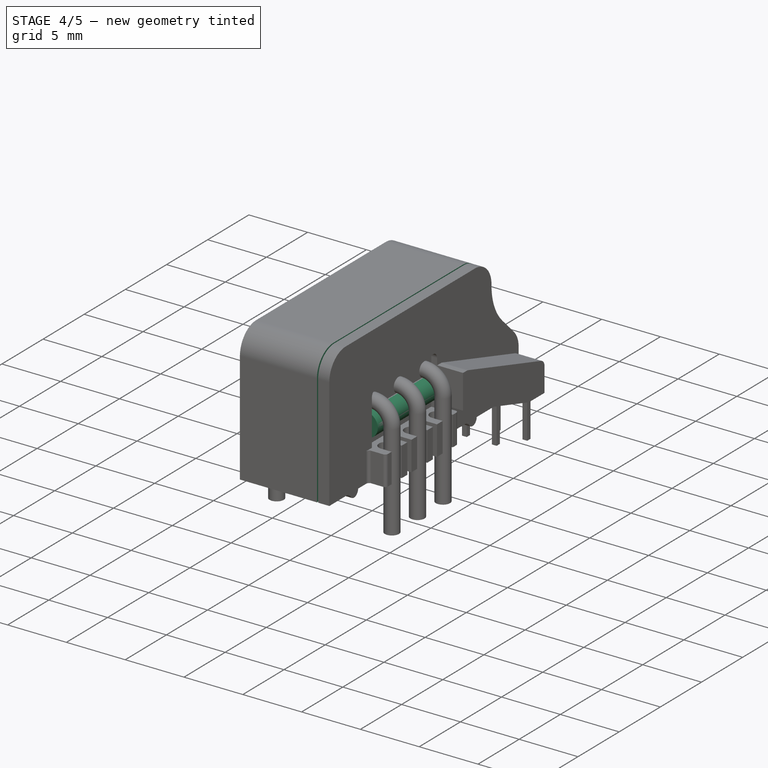
[diagram: stage 4 of 5 — iso view after this stage's code; geometry added in this stage tinted green]
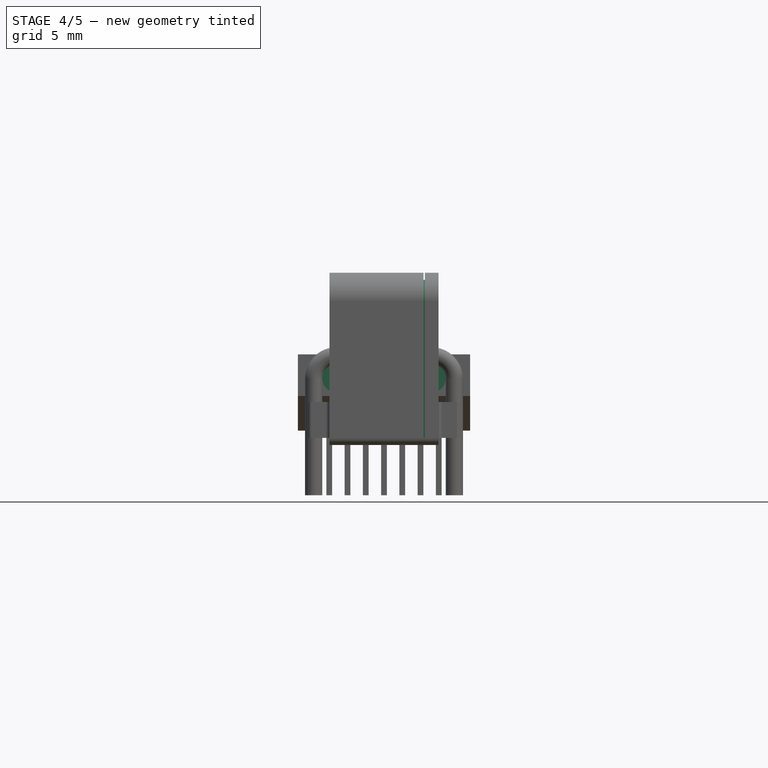
[diagram: stage 4 of 5 — front view after this stage's code; geometry added in this stage tinted green]
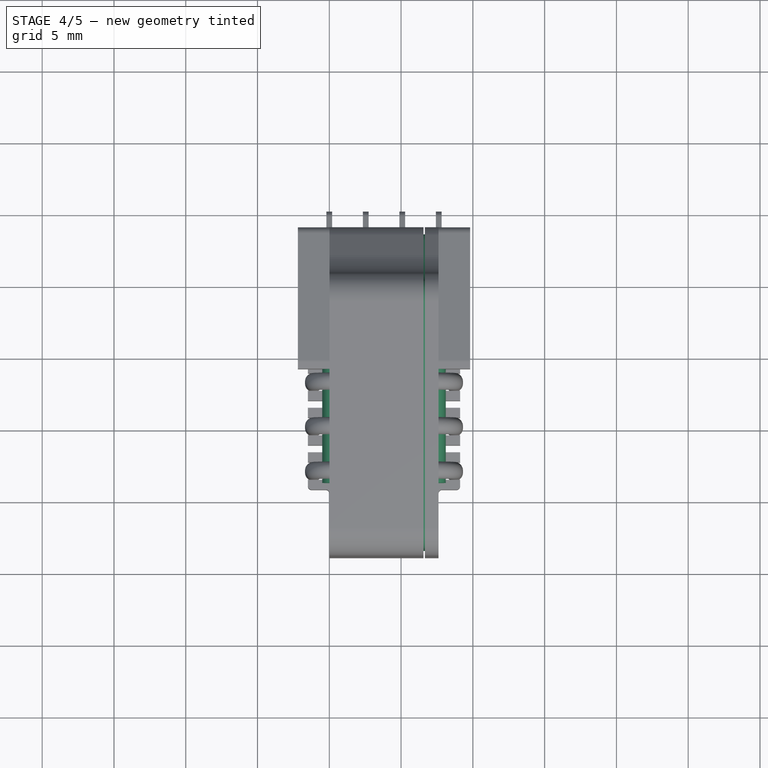
[diagram: stage 4 of 5 — top view after this stage's code; geometry added in this stage tinted green]
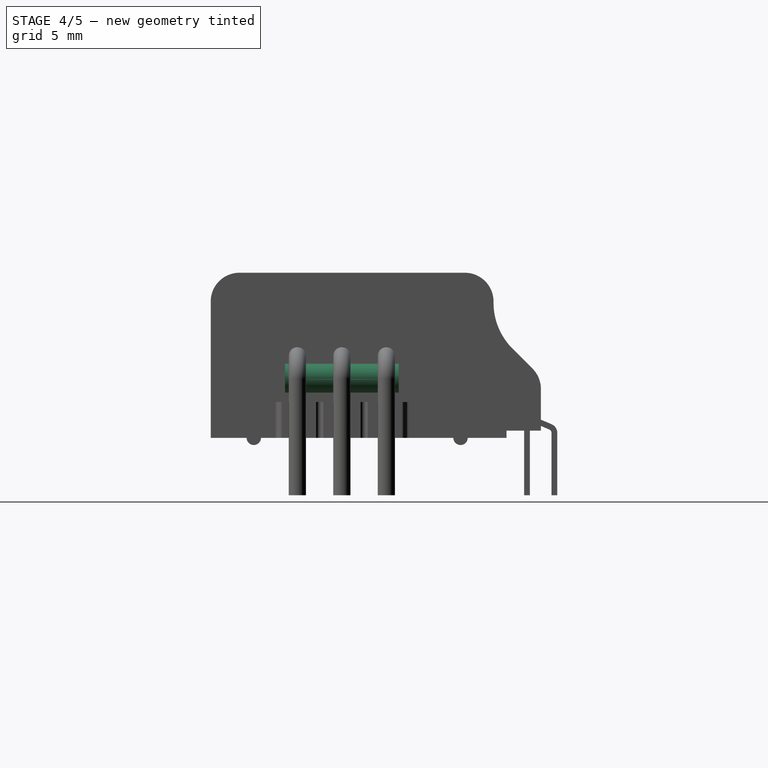
[diagram: stage 4 of 5 — right view after this stage's code; geometry added in this stage tinted green]
FEATURE [Sketcher::SketchObject] Sketch004
  ExternalGeometry = -> [Mirrored001]
  MapMode = 5
  Placement = pos=(3.81,-18.77,0) rot=(0.57735,-0.57735,-0.57735;4.18879rad)
  Support = -> [Mirrored001]
  sketch-geometry (2):
    g0: LineSegment StartX=-5.65 StartY=3.3 StartZ=0 EndX=-3.65 EndY=3.3 EndZ=0
    g1: ArcOfCircle CenterX=-4.65 CenterY=3.3 CenterZ=0 NormalX=0 NormalY=0 NormalZ=1 Radius=1 StartAngle=0 EndAngle=3.14159
  constraints (7):
    c: Horizontal(g0)
    c: PointOnObject(g1,g0)
    c: Coincident(g1,g0)
    c: Radius(g1) = 1
    c: Coincident(g1,g0)
    c: DistanceX(g1,g-1) = 4.65
    c: PointOnObject(g1,g-3)
FEATURE [PartDesign::Pad] Pad003
  BaseFeature = -> Mirrored001
  Length = 10
  Length2 = 100
  Placement = pos=(3.81,0,0) rot=(0.57735,-0.57735,-0.57735;2.0944rad)
  Profile = -> Sketch004
  Type = 3
  UpToFace = -> Mirrored001 [Face30]
FEATURE [PartDesign::Mirrored] Mirrored002
  BaseFeature = -> Pad003
  MirrorPlane = -> DatumPlane
  Originals = -> [Pad003]
  Placement = pos=(3.81,0,0) rot=(0.57735,-0.57735,-0.57735;2.0944rad)
FEATURE [PartDesign::Plane] DatumPlane002  label="Slot_mid"
  MapMode = 5
  Placement = pos=(6.61,0,0) rot=(0.57735,-0.57735,-0.57735;2.0944rad)
  Support = -> [DatumPlane]
  superPlacement = pos=(0,0,-2.8) rot=(0,0,1;0rad)
  expr: superPlacement.Base.z = -7.5999999999999996 / 2 + 1
FEATURE [Sketcher::SketchObject] Sketch005
  ExternalGeometry = -> [Mirrored002]
  MapMode = 5
  Placement = pos=(6.61,0,0) rot=(0.57735,-0.57735,-0.57735;2.0944rad)
  Support = -> [DatumPlane002]
  sketch-geometry (20):
    g0: ArcOfCircle CenterX=6.24 CenterY=10 CenterZ=0 NormalX=0 NormalY=0 NormalZ=1 Radius=2 StartAngle=1.5708 EndAngle=3.14159
    g1: ArcOfCircle CenterX=-0.259999 CenterY=9.9 CenterZ=0 NormalX=0 NormalY=0 NormalZ=1 Radius=4.5 StartAngle=5.49779 EndAngle=6.28319
    g2: ArcOfCircle CenterX=2.94 CenterY=3.90761 CenterZ=0 NormalX=0 NormalY=0 NormalZ=1 Radius=2 StartAngle=2.35619 EndAngle=3.14159
    g3: ArcOfCircle CenterX=21.94 CenterY=10 CenterZ=0 NormalX=0 NormalY=0 NormalZ=1 Radius=2 StartAngle=0 EndAngle=1.5708
    g4: LineSegment StartX=4.24 StartY=10 StartZ=0 EndX=4.24 EndY=9.9 EndZ=0
    g5: LineSegment StartX=2.92198 StartY=6.71802 StartZ=0 EndX=1.52579 EndY=5.32182 EndZ=0
    g6: LineSegment StartX=6.24 StartY=12 StartZ=0 EndX=21.94 EndY=12 EndZ=0
    g7: LineSegment StartX=23.94 StartY=10 StartZ=0 EndX=23.94 EndY=0.5 EndZ=0
    g8: LineSegment StartX=23.94 StartY=0.5 StartZ=0 EndX=23.44 EndY=0.5 EndZ=0
    g9: LineSegment StartX=0.94 StartY=3.90761 StartZ=0 EndX=0.94 EndY=1 EndZ=0
    g10: LineSegment StartX=0.94 StartY=1 StartZ=0 EndX=1.44 EndY=1 EndZ=0
    g11: LineSegment StartX=1.44 StartY=1 StartZ=0 EndX=1.44 EndY=3.90761 EndZ=0
    g12: LineSegment StartX=1.87934 StartY=4.96827 StartZ=0 EndX=3.27553 EndY=6.36447 EndZ=0
    g13: LineSegment StartX=4.74 StartY=9.9 StartZ=0 EndX=4.74 EndY=10 EndZ=0
    g14: LineSegment StartX=6.24 StartY=11.5 StartZ=0 EndX=21.94 EndY=11.5 EndZ=0
    g15: LineSegment StartX=23.44 StartY=10 StartZ=0 EndX=23.44 EndY=0.5 EndZ=0
    g16: ArcOfCircle CenterX=6.24 CenterY=10 CenterZ=0 NormalX=0 NormalY=0 NormalZ=1 Radius=1.5 StartAngle=1.5708 EndAngle=3.14159
    g17: ArcOfCircle CenterX=-0.259999 CenterY=9.9 CenterZ=0 NormalX=0 NormalY=0 NormalZ=1 Radius=5 StartAngle=5.49779 EndAngle=6.28319
    g18: ArcOfCircle CenterX=2.94 CenterY=3.90761 CenterZ=0 NormalX=0 NormalY=0 NormalZ=1 Radius=1.5 StartAngle=2.35619 EndAngle=3.14159
    g19: ArcOfCircle CenterX=21.94 CenterY=10 CenterZ=0 NormalX=0 NormalY=0 NormalZ=1 Radius=1.5 StartAngle=0 EndAngle=1.5708
  constraints (47):
    c: Coincident(g4,g0)
    c: Coincident(g4,g1)
    c: Coincident(g5,g1)
    c: Coincident(g5,g2)
    c: Coincident(g6,g3)
    c: Coincident(g0,g6)
    c: Equal(g-3,g0)
    c: Coincident(g0,g-3)
    c: Equal(g-5,g1)
    c: Equal(g2,g-6)
    c: Coincident(g2,g-6)
    c: Coincident(g2,g-6)
    c: Coincident(g1,g-5)
    c: Coincident(g1,g-5)
    c: Coincident(g0,g-3)
    c: Coincident(g3,g-4)
    c: Coincident(g3,g-4)
    c: Equal(g3,g-4)
    c: Tangent(g3,g7) = 1.5708
    c: Coincident(g7,g8)
    c: Horizontal(g8)
    c: Vertical(g9)
    c: Coincident(g9,g10)
    c: Horizontal(g10)
    c: Coincident(g10,g11)
    c: Vertical(g11)
    c: Vertical(g13)
    c: Horizontal(g14)
    c: Coincident(g15,g8)
    c: Vertical(g15)
    c: Tangent(g14,g16) = 1.5708
    c: Tangent(g13,g16) = 1.5708
    c: Coincident(g16,g0)
    c: Tangent(g13,g17) = -1.5708
    c: Tangent(g12,g17) = -1.5708
    c: Parallel(g12,g5)
    c: Tangent(g12,g18) = 1.5708
    c: Tangent(g11,g18) = 1.5708
    c: Coincident(g18,g2)
    c: DistanceX(g10,g10) = 0.5
    c: Coincident(g9,g2)
    c: Coincident(g17,g1)
    c: Tangent(g14,g19) = 1.5708
    c: Tangent(g15,g19) = 1.5708
    c: Coincident(g19,g3)
    c: Coincident(g7,g-7)
    c: Coincident(g9,g-8)
FEATURE [PartDesign::Pocket] Pocket001
  BaseFeature = -> Mirrored002
  Length = 0.1
  Midplane = true
  Placement = pos=(3.81,0,0) rot=(0.57735,-0.57735,-0.57735;2.0944rad)
  Profile = -> Sketch005
  Type = 0
FEATURE [Sketcher::SketchObject] Sketch006
  ExternalGeometry = -> [Pocket001]
  MapMode = 5
  Placement = pos=(3.81,-0.94,0) rot=(0.57735,-0.57735,-0.57735;4.18879rad)
  Support = -> [Pocket001]
  sketch-geometry (6):
    g0: LineSegment StartX=-1 StartY=5.3 StartZ=0 EndX=-1.7 EndY=5.3 EndZ=0
    g1: LineSegment StartX=-2.2 StartY=4.8 StartZ=0 EndX=-2.2 EndY=-4.8 EndZ=0
    g2: LineSegment StartX=-1.7 StartY=-5.3 StartZ=0 EndX=-1 EndY=-5.3 EndZ=0
    g3: LineSegment StartX=-1 StartY=-5.3 StartZ=0 EndX=-1 EndY=5.3 EndZ=0
    g4: ArcOfCircle CenterX=-1.7 CenterY=4.8 CenterZ=0 NormalX=0 NormalY=0 NormalZ=1 Radius=0.5 StartAngle=1.5708 EndAngle=3.14159
    g5: ArcOfCircle CenterX=-1.7 CenterY=-4.8 CenterZ=0 NormalX=0 NormalY=0 NormalZ=1 Radius=0.5 StartAngle=3.14159 EndAngle=4.71239
  constraints (16):
    c: Coincident(g2,g3)
    c: Coincident(g3,g0)
    c: Horizontal(g0)
    c: Horizontal(g2)
    c: Vertical(g1)
    c: Vertical(g3)
    c: PointOnObject(g0,g-4)
    c: Tangent(g0,g4) = -1.5708
    c: Tangent(g1,g4) = -1.5708
    c: Tangent(g1,g5) = -1.5708
    c: Tangent(g2,g5) = -1.5708
    c: Radius(g5) = 0.5
    c: Equal(g5,g4)
    c: DistanceY(g0,g-4) = 0.7
    c: DistanceY(g-3,g2) = 0.7
    c: DistanceX(g1,g-3) = 1.2
FEATURE [PartDesign::Pocket] Pocket002
  BaseFeature = -> Pocket001
  Length = 1.45
  Placement = pos=(3.81,0,0) rot=(0.57735,-0.57735,-0.57735;2.0944rad)
  Profile = -> Sketch006
  Type = 0
FEATURE [PartDesign::Body] Body002  label="SignalPins"
  Group = -> [DatumPlane006,Sketch009,Pad004,Sketch010,Pad005,LinearPattern,DatumPlane007,Sketch011,Pad006,LinearPattern001]
  Origin = -> Body002Origin
  Tip = -> LinearPattern001
FEATURE [App::Part] Part  label="LEM_HO-NP_part"
  Group = -> [Body,Body001,Sweep,Array,Body002]
  License = CC BY 3.0
  LicenseURL = http://creativecommons.org/licenses/by/3.0/
  Origin = -> PartOrigin
FEATURE [Part::MultiFuse] Fusion  label="LEM_HO-NP"
  Shapes = -> [Pocket002,Array,LinearPattern001]
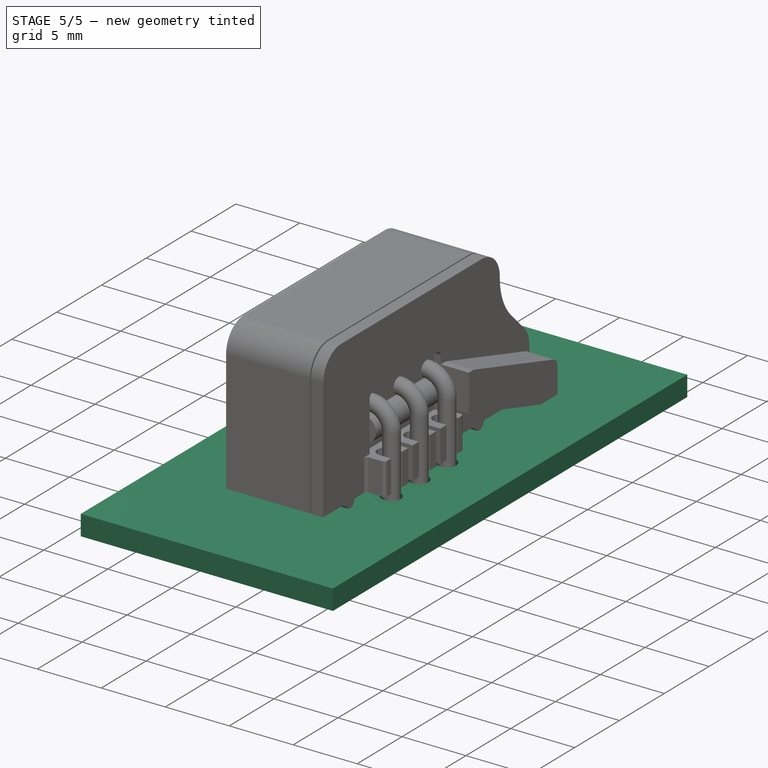
[diagram: stage 5 of 5 — iso view after this stage's code; geometry added in this stage tinted green]
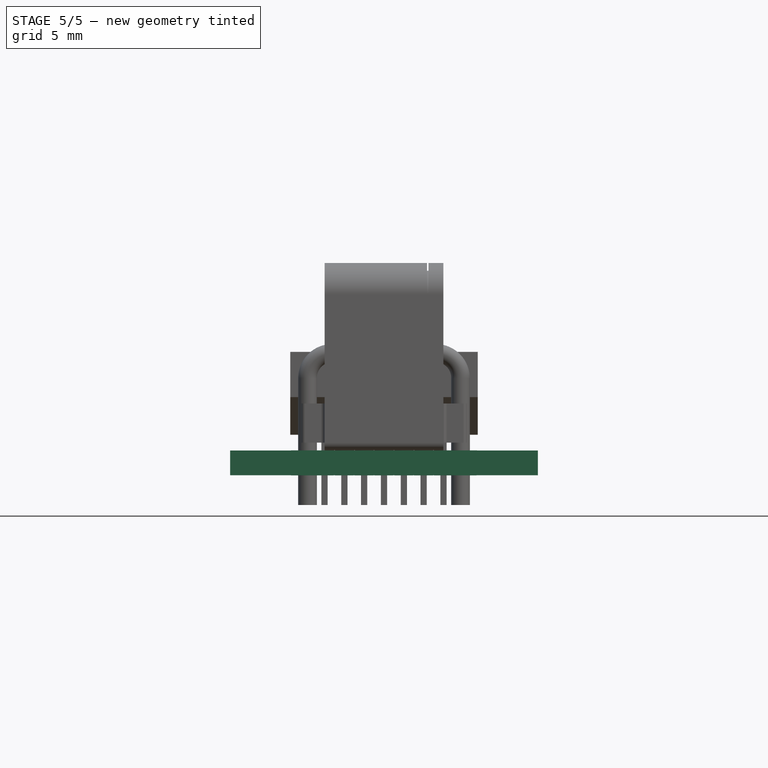
[diagram: stage 5 of 5 — front view after this stage's code; geometry added in this stage tinted green]
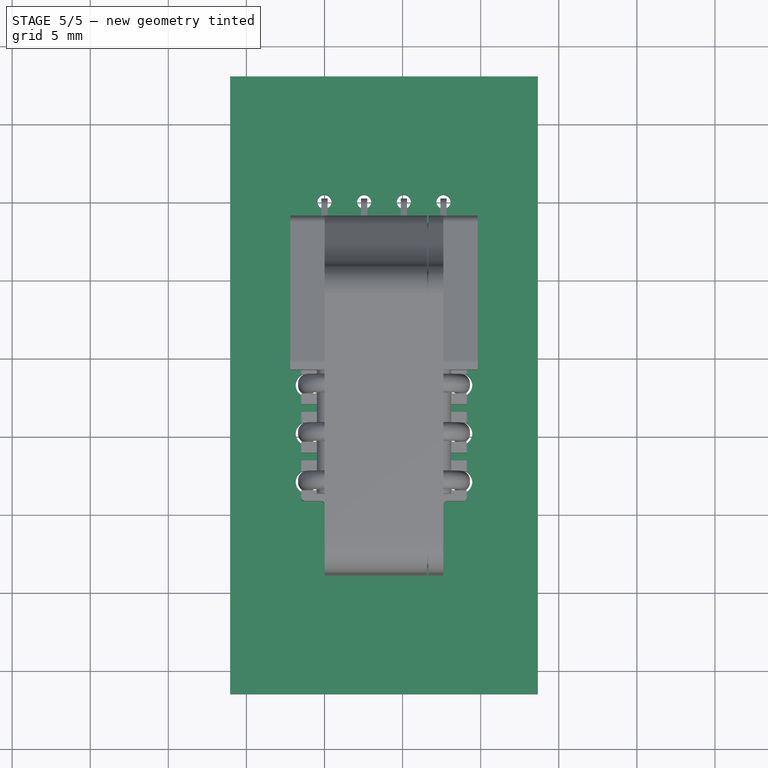
[diagram: stage 5 of 5 — top view after this stage's code; geometry added in this stage tinted green]
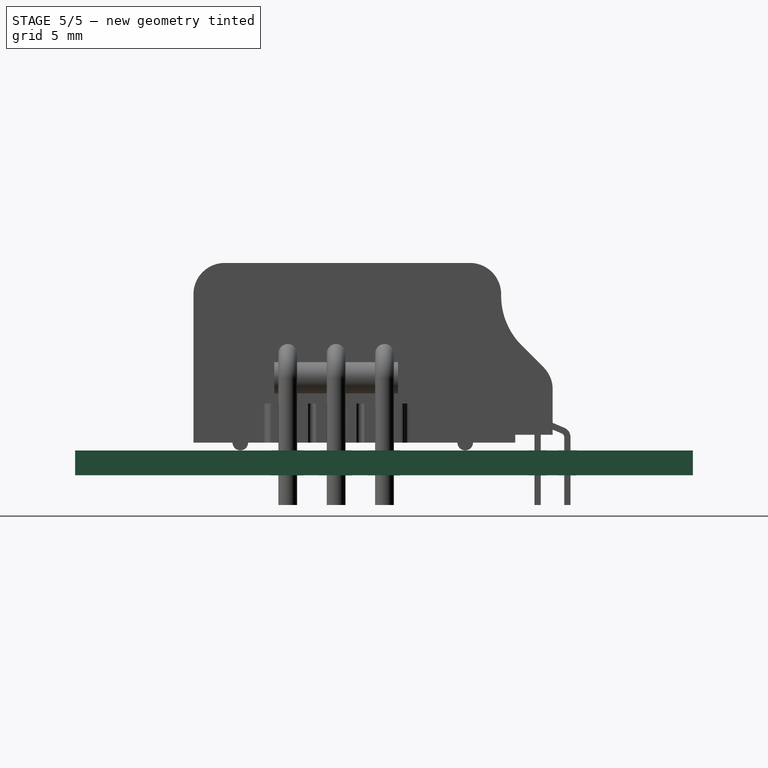
[diagram: stage 5 of 5 — right view after this stage's code; geometry added in this stage tinted green]
FEATURE [Part::FeaturePython] Filk_lines  label="FrontSilk"  # a2plus imported part (geometry in sourceFile) (typed FeaturePython)
  fixedPosition = true
FEATURE [Part::FeaturePython] TopPads  # a2plus imported part (geometry in sourceFile) (typed FeaturePython)
  fixedPosition = true
FEATURE [Part::FeaturePython] BotPads  # a2plus imported part (geometry in sourceFile) (typed FeaturePython)
  fixedPosition = true
FEATURE [Part::FeaturePython] THPs  label="PTHs"  # a2plus imported part (geometry in sourceFile) (typed FeaturePython)
  fixedPosition = true
FEATURE [Part::FeaturePython] newPCB  label="Pcb"  # a2plus imported part (geometry in sourceFile) (typed FeaturePython)
  fixedPosition = true
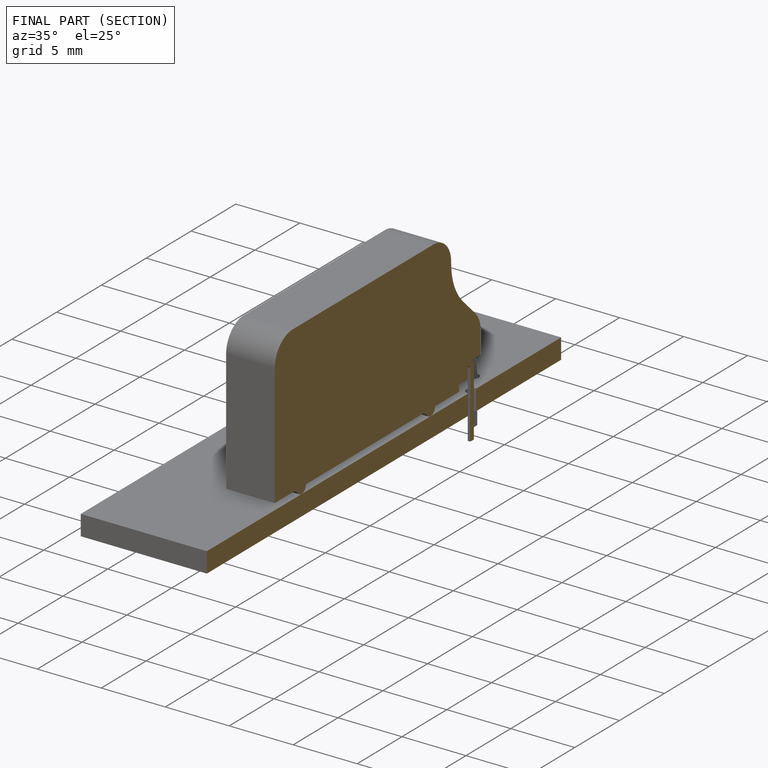
[diagram: finished part — half-section view (interior)]
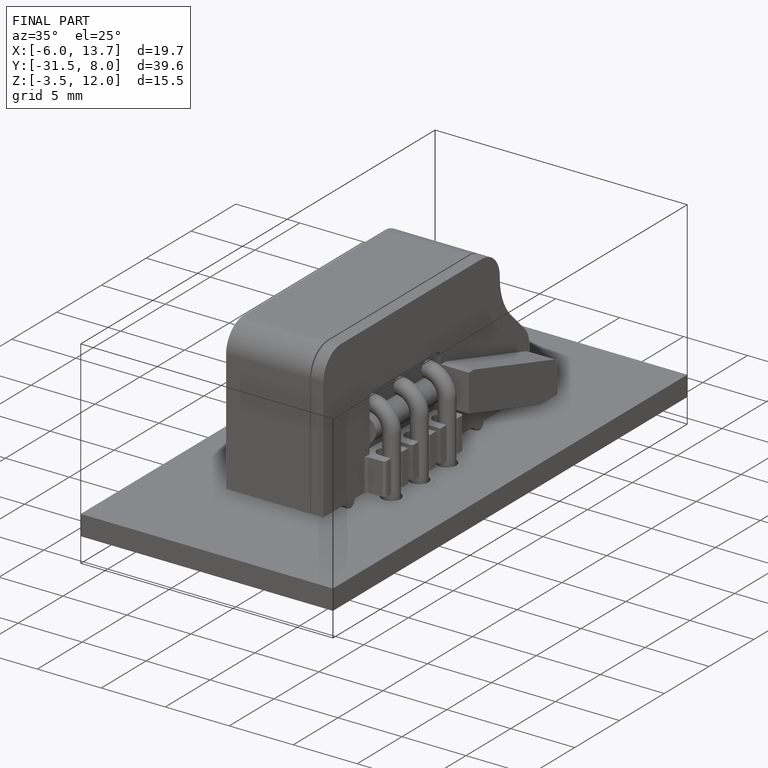
[diagram: finished part — iso view with bounding-box wireframe]
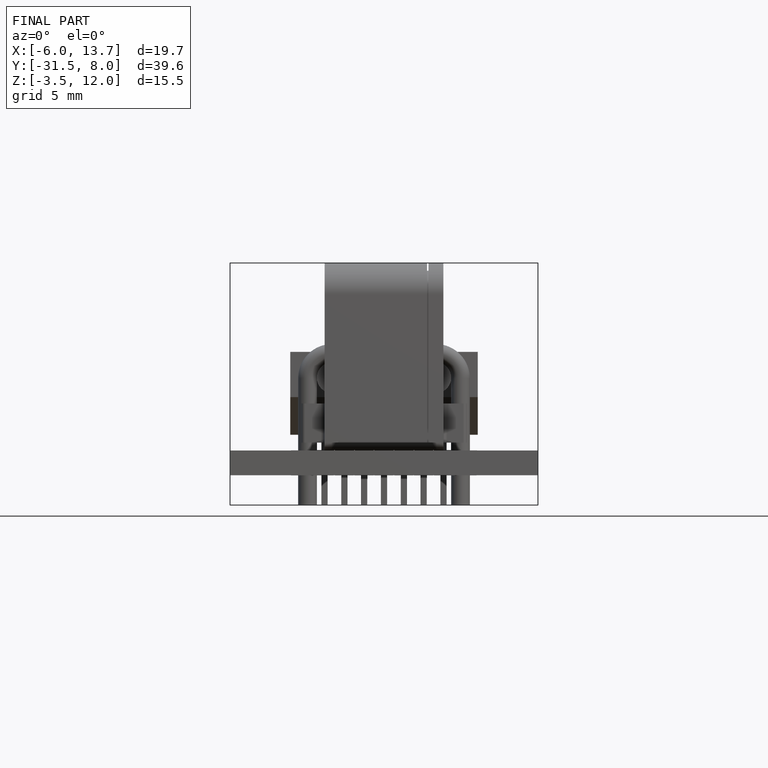
[diagram: finished part — front view with bounding-box wireframe]
